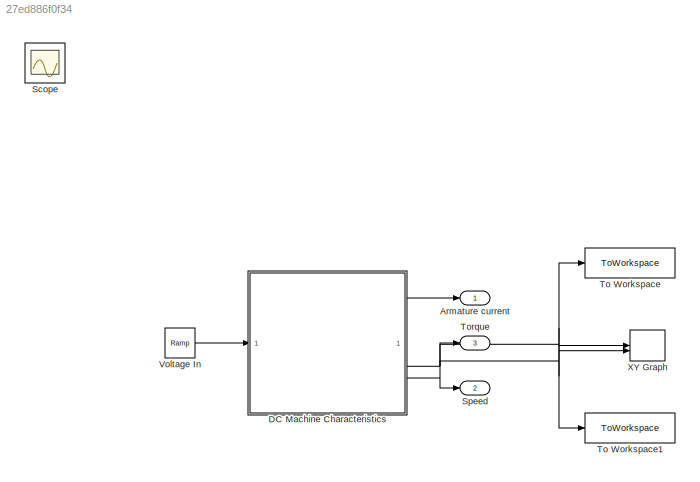
MODEL slx_27ed886f0f34
KIND model
CONFIG AbsTol = auto
CONFIG EnableMultiTasking = off
CONFIG FixedStep = auto
CONFIG MaxStep = auto
CONFIG MinStep = auto
CONFIG RelTol = 1e-3
CONFIG SampleTimeConstraint = Unconstrained
CONFIG SolverName = VariableStepAuto
CONFIG StartTime = 0.0
CONFIG StopTime = 0.1
BLOCK [Outport] Armature current
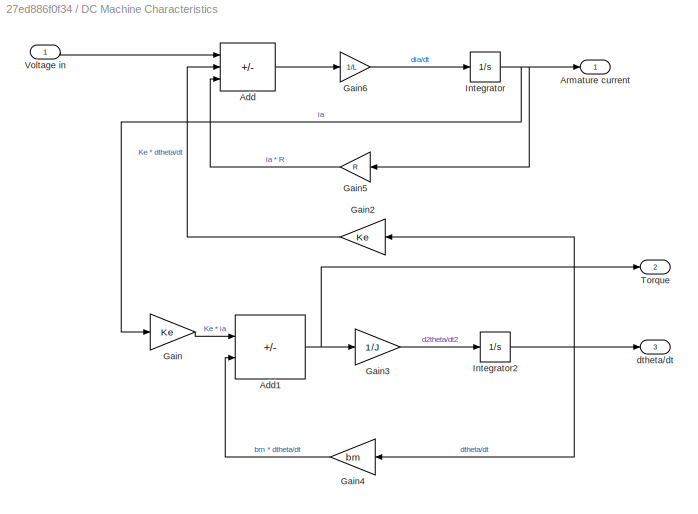
BLOCK [SubSystem] DC Machine Characteristics
BLOCK [Sum] DC Machine Characteristics/Add
  IconShape = rectangular
  Inputs = +--
BLOCK [Sum] DC Machine Characteristics/Add1
  IconShape = rectangular
  Inputs = +-
BLOCK [Outport] DC Machine Characteristics/Armature current
BLOCK [Gain] DC Machine Characteristics/Gain
  Gain = Ke
BLOCK [Gain] DC Machine Characteristics/Gain2
  Gain = Ke
  NameLocation = top
BLOCK [Gain] DC Machine Characteristics/Gain3
  Gain = 1/J
BLOCK [Gain] DC Machine Characteristics/Gain4
  Gain = bm
  NameLocation = top
BLOCK [Gain] DC Machine Characteristics/Gain5
  Gain = R
  NameLocation = top
BLOCK [Gain] DC Machine Characteristics/Gain6
  Gain = 1/L
BLOCK [Integrator] DC Machine Characteristics/Integrator
BLOCK [Integrator] DC Machine Characteristics/Integrator2
BLOCK [Outport] DC Machine Characteristics/Torque
  Port = 2
BLOCK [Inport] DC Machine Characteristics/Voltage in
BLOCK [Outport] DC Machine Characteristics/dtheta//dt
  Port = 3
BLOCK [Scope] Scope
  Floating = off
  IOType = viewer
  NumInputPorts = 1
  ScopeSpecificationString = Simulink.scopes.TimeScopeBlockCfg('CurrentConfiguration', extmgr.ConfigurationSet(extmgr.Configuration('Core','General UI',true),extmgr.Configuration('Core','Source UI',true),extmgr.Configuration('Sources','WiredSimulink',true),extmgr.Configuration('Visuals','Time Domain',true,'SerializedDisplays',{struct('MinYLimReal','-42.68795','MaxYLimReal','325.57052','YLabelReal','','MinYLimMag','0.00000','M...<+2736ch>
BLOCK [Outport] Speed
  Port = 2
BLOCK [ToWorkspace] To Workspace
  FixptAsFi = on
  MaxDataPoints = inf
  SampleTime = 0.001
  VariableName = Torque
BLOCK [ToWorkspace] To Workspace1
  FixptAsFi = on
  MaxDataPoints = inf
  SampleTime = 0.001
  VariableName = Speed
BLOCK [Outport] Torque
  Port = 3
BLOCK [Reference] Voltage In  REF=simulink/Sources/Ramp
  SourceBlock = simulink/Sources/Ramp
  SourceType = Ramp
BLOCK [Record] XY Graph
  CompatibilityTag = XY
  FileSettingsInternal = {"entries":[{"content":{"excelSettings":{"content":{},"type":"Streamout.ExcelSettings"}},"type":"Streamout.FileSettingStorage","uuid":""}],"packageUris":["http:\/\/schema.mathworks.com\/mf0\/streamout_blocks\/R2020a"],"version":"1.0"}
  Layout = [1 1]
  SignalsInternal = {"entries":[{"content":{"signals":[{"content":{"blockPath":[],"dimensions":[1],"domain":"","lineColor":"#a2142f","plots":[1],"port":1,"sid":[""],"signalID":1901,"signalName":"DC Machine Characteristics:3"},"type":"RecordBlkView.Signal","uuid":""},{"content":{"blockPath":[],"dimensions":[1],"domain":"","lineColor":"#139fff","plots":[1],"port":2,"sid":[""],"signalID":1905,"signalName":"DC Machine Ch...<+204ch>
  VisualizationBindings = {"xyplotplugin":{"info":[{"series":[{"bindingParametersList":[{"parameter":"X-Axis","signalID":1901,"signalName":"DC Machine Characteristics:3"},{"parameter":"Y-Axis","signalID":1905,"signalName":"DC Machine Characteristics:2"}],"seriesID":37500}],"subplotID":1}]}}
NET DC Machine Characteristics/Add1:1 -> DC Machine Characteristics/Gain3:1, DC Machine Characteristics/Torque:1
LINE DC Machine Characteristics/Add:1 -> DC Machine Characteristics/Gain6:1
LINE DC Machine Characteristics/Gain2:1 -> DC Machine Characteristics/Add:2
LINE DC Machine Characteristics/Gain3:1 -> DC Machine Characteristics/Integrator2:1
LINE DC Machine Characteristics/Gain4:1 -> DC Machine Characteristics/Add1:2
LINE DC Machine Characteristics/Gain5:1 -> DC Machine Characteristics/Add:3
LINE DC Machine Characteristics/Gain6:1 -> DC Machine Characteristics/Integrator:1
LINE DC Machine Characteristics/Gain:1 -> DC Machine Characteristics/Add1:1
NET DC Machine Characteristics/Integrator2:1 -> DC Machine Characteristics/Gain2:1, DC Machine Characteristics/Gain4:1, DC Machine Characteristics/dtheta//dt:1
NET DC Machine Characteristics/Integrator:1 -> DC Machine Characteristics/Armature current:1, DC Machine Characteristics/Gain5:1, DC Machine Characteristics/Gain:1
LINE DC Machine Characteristics/Voltage in:1 -> DC Machine Characteristics/Add:1
LINE DC Machine Characteristics:1 -> Armature current:1
NET DC Machine Characteristics:2 -> To Workspace:1, Torque:1, XY Graph:2
NET DC Machine Characteristics:3 -> Speed:1, To Workspace1:1, XY Graph:1
LINE Voltage In:1 -> DC Machine Characteristics:1
note: NET lines group one-source signal fan-out (src -> all destinations, sorted); 1:1 wires keep LINE
